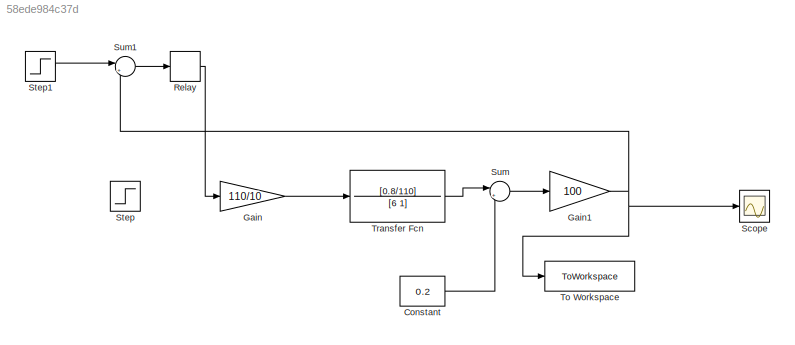
MODEL slx_58ede984c37d
KIND model
CONFIG AbsTol = auto
CONFIG EnableMultiTasking = off
CONFIG FixedStep = auto
CONFIG MaxStep = auto
CONFIG MinStep = auto
CONFIG RelTol = 1e-3
CONFIG SampleTimeConstraint = Unconstrained
CONFIG SolverName = VariableStepAuto
CONFIG StartTime = 0.0
CONFIG StopTime = 30
BLOCK [Constant] Constant
  Value = 0.2
BLOCK [Gain] Gain
  Gain = 110/10
BLOCK [Gain] Gain1
  Gain = 100
BLOCK [Relay] Relay
  OffSwitchValue = -1
  OnOutputValue = 10
  OnSwitchValue = 1
BLOCK [Scope] Scope
  Floating = off
  NumInputPorts = 1
  ScopeSpecificationString = Simulink.scopes.TimeScopeBlockCfg('CurrentConfiguration', extmgr.ConfigurationSet(extmgr.Configuration('Core','General UI',true),extmgr.Configuration('Core','Source UI',true),extmgr.Configuration('Sources','WiredSimulink',true),extmgr.Configuration('Visuals','Time Domain',true,'SerializedDisplays',{struct('MinYLimReal','14.875','MaxYLimReal','66.125','YLabelReal','','MinYLimMag','14.875','MaxYLimM...<+1404ch>
BLOCK [Step] Step
  After = 10
  SampleTime = 0
  Time = 0
BLOCK [Step] Step1
  After = 60
  SampleTime = 0
  Time = 0
BLOCK [Sum] Sum
  Inputs = |++
BLOCK [Sum] Sum1
  Inputs = |+-
BLOCK [ToWorkspace] To Workspace
  FixptAsFi = on
  MaxDataPoints = inf
  SampleTime = -1
  SaveFormat = Timeseries
  VariableName = Temp
BLOCK [TransferFcn] Transfer Fcn
  Denominator = [6 1]
  Numerator = [0.8/110]
LINE Constant:1 -> Sum:2
NET Gain1:1 -> Scope:1, Sum1:2, To Workspace:1
LINE Gain:1 -> Transfer Fcn:1
LINE Relay:1 -> Gain:1
LINE Step1:1 -> Sum1:1
LINE Sum1:1 -> Relay:1
LINE Sum:1 -> Gain1:1
LINE Transfer Fcn:1 -> Sum:1
note: NET lines group one-source signal fan-out (src -> all destinations, sorted); 1:1 wires keep LINE
